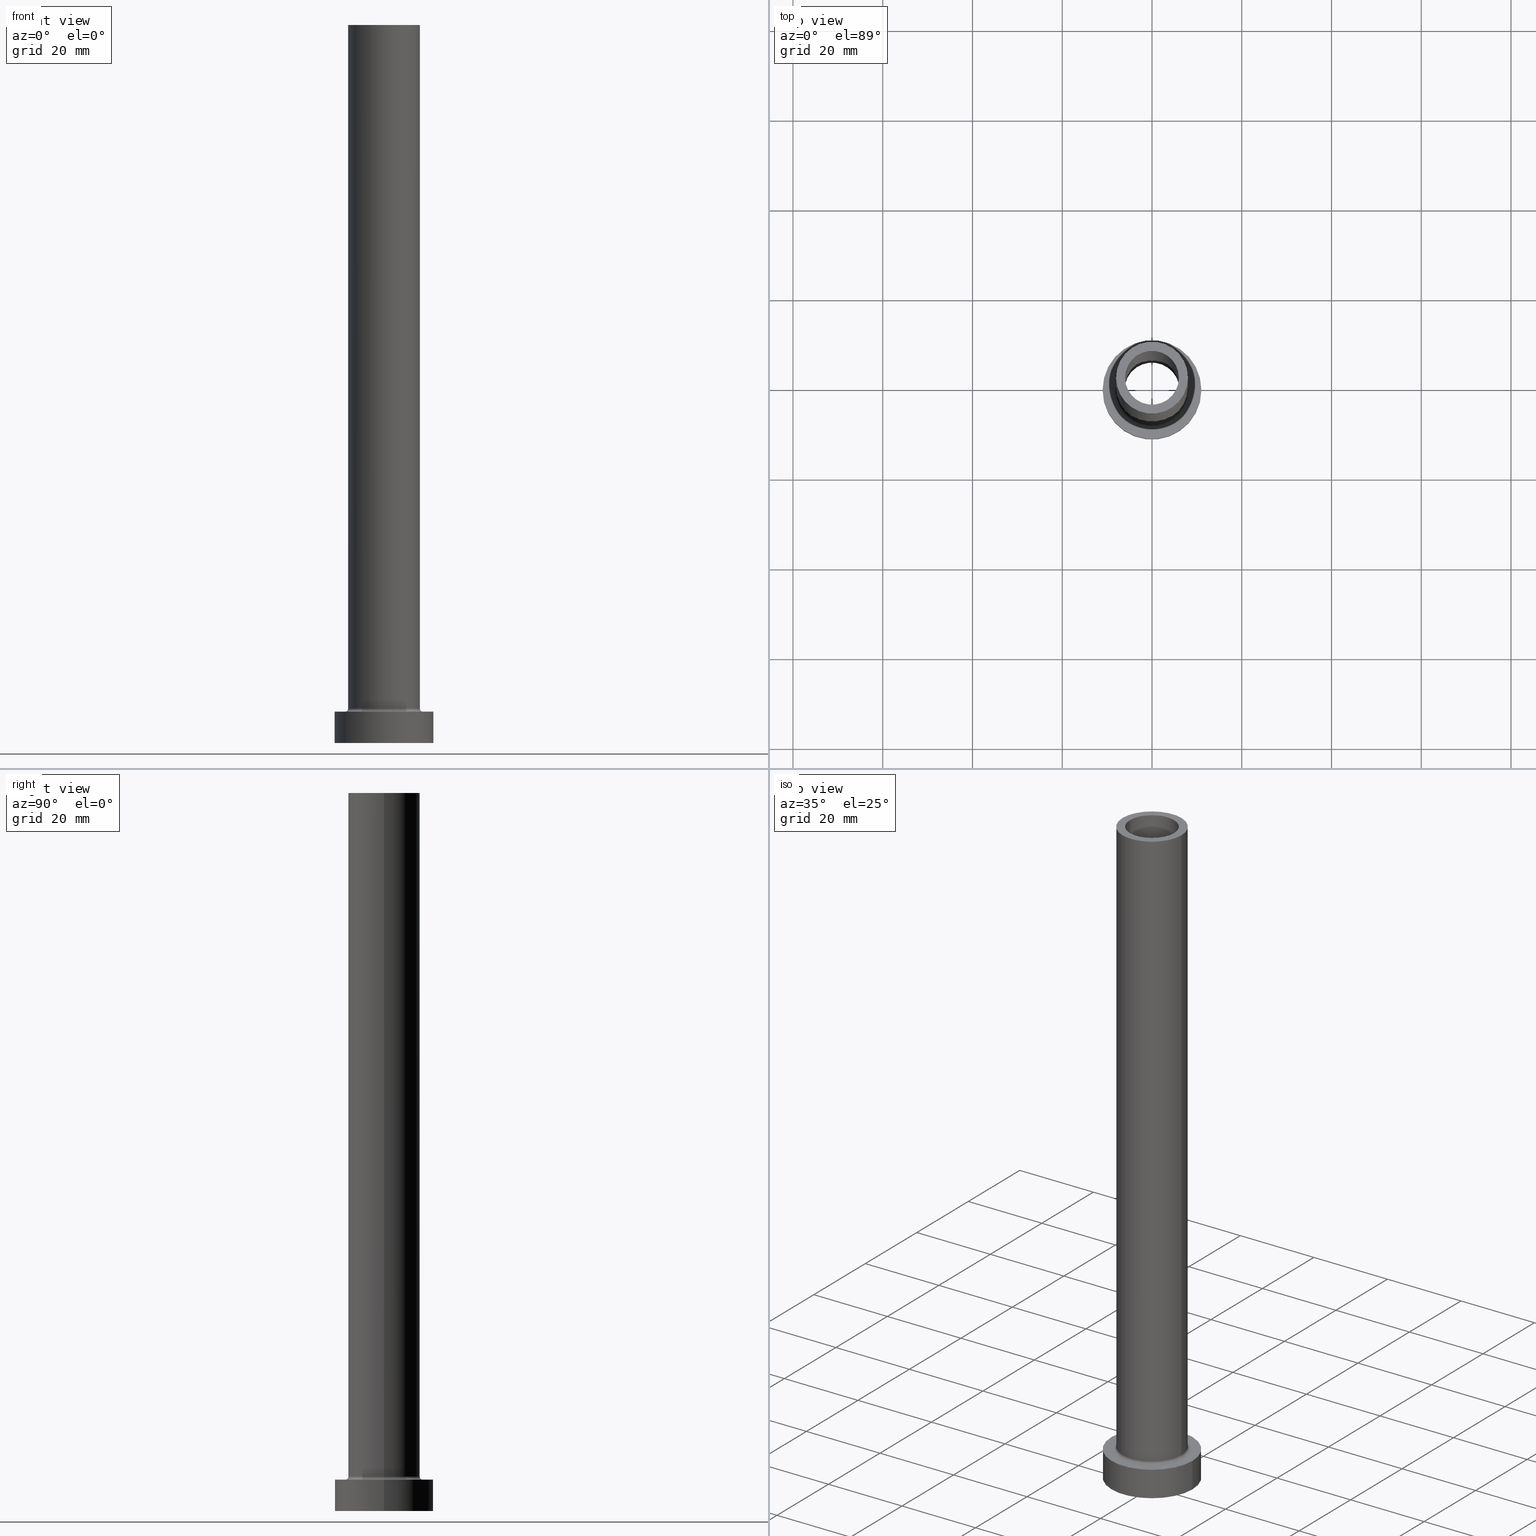
[diagram: canonical four-view strip — front | top / right | iso, engineering-drawing reading convention]
A machine part, canonical four-view strip (front | top / right | iso — engineering-drawing reading convention). The complete STEP part file that produces these views, byte-faithful:
ISO-10303-21;
HEADER;
FILE_DESCRIPTION (( 'STEP AP203' ),
    '1' );
FILE_NAME ('1817.STEP',
    '2023-02-13T07:42:31',
    ( '' ),
    ( '' ),
    'SwSTEP 2.0',
    'SolidWorks 2019',
    '' );
FILE_SCHEMA (( 'CONFIG_CONTROL_DESIGN' ));
ENDSEC;

DATA;
#1 = DIRECTION ( 'NONE',  ( 0.000000000000000000, 0.000000000000000000, 1.000000000000000000 ) ) ;
#2 = VERTEX_POINT ( 'NONE', #188 ) ;
#3 = ORGANIZATION ( 'NEUR�EN�', 'NEUR�EN�', '' ) ;
#4 = EDGE_CURVE ( 'NONE', #206, #430, #296, .T. ) ;
#5 = CARTESIAN_POINT ( 'NONE',  ( 0.000000000000000000, 0.000000000000000000, 7.000000000000000000 ) ) ;
#6 = ORIENTED_EDGE ( 'NONE', *, *, #4, .F. ) ;
#7 = APPLICATION_PROTOCOL_DEFINITION ( 'international standard', 'config_control_design', 1994, #309 ) ;
#8 = ORIENTED_EDGE ( 'NONE', *, *, #350, .T. ) ;
#9 = DIRECTION ( 'NONE',  ( 0.000000000000000000, 0.000000000000000000, 1.000000000000000000 ) ) ;
#10 = CIRCLE ( 'NONE', #372, 6.000000000000000888 ) ;
#11 = CARTESIAN_POINT ( 'NONE',  ( 0.000000000000000000, 0.000000000000000000, 7.000000000000000000 ) ) ;
#12 =( NAMED_UNIT ( * ) SI_UNIT ( $, .STERADIAN. ) SOLID_ANGLE_UNIT ( ) );
#13 = CARTESIAN_POINT ( 'NONE',  ( 11.00000000000000000, 1.347111479062088405E-15, 0.000000000000000000 ) ) ;
#14 = CIRCLE ( 'NONE', #71, 11.00000000000000000 ) ;
#15 = ORIENTED_EDGE ( 'NONE', *, *, #456, .F. ) ;
#16 = PERSON_AND_ORGANIZATION_ROLE ( 'classification_officer' ) ;
#17 = CARTESIAN_POINT ( 'NONE',  ( 0.000000000000000000, 0.000000000000000000, 7.700000000000012612 ) ) ;
#18 = APPROVAL_STATUS ( 'not_yet_approved' ) ;
#19 = DIRECTION ( 'NONE',  ( 0.000000000000000000, 0.000000000000000000, 1.000000000000000000 ) ) ;
#20 = PERSON_AND_ORGANIZATION ( #191, #3 ) ;
#21 = AXIS2_PLACEMENT_3D ( 'NONE', #367, #47, #365 ) ;
#22 = FACE_BOUND ( 'NONE', #317, .T. ) ;
#23 = DIRECTION ( 'NONE',  ( 1.000000000000000000, 0.000000000000000000, 0.000000000000000000 ) ) ;
#24 = APPROVAL ( #18, 'NEUR�EN�' ) ;
#25 = CARTESIAN_POINT ( 'NONE',  ( 6.000000000000000888, 7.347880794884119736E-16, 160.0000000000000000 ) ) ;
#26 = PLANE ( 'NONE',  #273 ) ;
#27 = APPROVAL_PERSON_ORGANIZATION ( #75, #374, #437 ) ;
#28 = ORIENTED_EDGE ( 'NONE', *, *, #458, .T. ) ;
#29 = VERTEX_POINT ( 'NONE', #331 ) ;
#30 = EDGE_CURVE ( 'NONE', #401, #36, #77, .T. ) ;
#31 = FACE_BOUND ( 'NONE', #358, .T. ) ;
#32 = EDGE_LOOP ( 'NONE', ( #67, #424 ) ) ;
#33 = EDGE_LOOP ( 'NONE', ( #284, #73, #176, #156 ) ) ;
#34 = PRODUCT_DEFINITION_SHAPE ( 'NONE', 'NONE',  #76 ) ;
#35 = CARTESIAN_POINT ( 'NONE',  ( 0.000000000000000000, 0.000000000000000000, 132.3948268171890561 ) ) ;
#36 = VERTEX_POINT ( 'NONE', #369 ) ;
#37 = FACE_OUTER_BOUND ( 'NONE', #394, .T. ) ;
#38 = CIRCLE ( 'NONE', #455, 6.150000000000000355 ) ;
#39 = VERTEX_POINT ( 'NONE', #222 ) ;
#40 = AXIS2_PLACEMENT_3D ( 'NONE', #276, #240, #205 ) ;
#41 = CC_DESIGN_APPROVAL ( #127, ( #57 ) ) ;
#42 = DIRECTION ( 'NONE',  ( 0.000000000000000000, 0.000000000000000000, 1.000000000000000000 ) ) ;
#43 = AXIS2_PLACEMENT_3D ( 'NONE', #453, #163, #263 ) ;
#44 = EDGE_CURVE ( 'NONE', #104, #138, #116, .T. ) ;
#45 = AXIS2_PLACEMENT_3D ( 'NONE', #185, #118, #255 ) ;
#46 = CC_DESIGN_PERSON_AND_ORGANIZATION_ASSIGNMENT ( #199, #377, ( #57 ) ) ;
#47 = DIRECTION ( 'NONE',  ( 0.000000000000000000, 0.000000000000000000, 1.000000000000000000 ) ) ;
#48 = DIRECTION ( 'NONE',  ( 1.000000000000000000, 0.000000000000000000, 0.000000000000000000 ) ) ;
#49 = CARTESIAN_POINT ( 'NONE',  ( 0.000000000000000000, 0.000000000000000000, 160.0000000000000000 ) ) ;
#50 = EDGE_CURVE ( 'NONE', #39, #177, #172, .T. ) ;
#51 = CIRCLE ( 'NONE', #440, 6.150000000000000355 ) ;
#52 = DIRECTION ( 'NONE',  ( 1.000000000000000000, 0.000000000000000000, 0.000000000000000000 ) ) ;
#53 = APPROVAL_STATUS ( 'not_yet_approved' ) ;
#54 = CARTESIAN_POINT ( 'NONE',  ( 0.000000000000000000, 0.000000000000000000, 132.3948268171890561 ) ) ;
#55 = CARTESIAN_POINT ( 'NONE',  ( 0.000000000000000000, 0.000000000000000000, 0.000000000000000000 ) ) ;
#56 = DATE_TIME_ROLE ( 'classification_date' ) ;
#57 = PRODUCT_DEFINITION_FORMATION_WITH_SPECIFIED_SOURCE ( 'LIBOVOLN�', '', #324, .NOT_KNOWN. ) ;
#58 = CARTESIAN_POINT ( 'NONE',  ( 8.000000000000000000, 9.797174393178825657E-16, 7.700000000000012612 ) ) ;
#59 = CARTESIAN_POINT ( 'NONE',  ( 6.000000000000000888, 7.347880794884119736E-16, 160.0000000000000000 ) ) ;
#60 = CARTESIAN_POINT ( 'NONE',  ( 0.000000000000000000, 0.000000000000000000, 115.0000000000000000 ) ) ;
#61 = ORIENTED_EDGE ( 'NONE', *, *, #149, .F. ) ;
#62 = CARTESIAN_POINT ( 'NONE',  ( -6.150000000000000355, 0.000000000000000000, 115.0000000000000000 ) ) ;
#63 = TOROIDAL_SURFACE ( 'NONE', #252, 8.699999999999999289, 0.6999999999999999556 ) ;
#64 = EDGE_LOOP ( 'NONE', ( #228, #70, #246, #83 ) ) ;
#65 = LOCAL_TIME ( 8, 42, 31.00000000000000000, #229 ) ;
#66 = DIRECTION ( 'NONE',  ( -1.000000000000000000, 0.000000000000000000, 0.000000000000000000 ) ) ;
#67 = ORIENTED_EDGE ( 'NONE', *, *, #416, .T. ) ;
#68 = ORIENTED_EDGE ( 'NONE', *, *, #277, .F. ) ;
#69 = CARTESIAN_POINT ( 'NONE',  ( -6.150000000000000355, 0.000000000000000000, 132.3948268171890561 ) ) ;
#70 = ORIENTED_EDGE ( 'NONE', *, *, #105, .T. ) ;
#71 = AXIS2_PLACEMENT_3D ( 'NONE', #417, #348, #52 ) ;
#72 = CYLINDRICAL_SURFACE ( 'NONE', #325, 6.000000000000000888 ) ;
#73 = ORIENTED_EDGE ( 'NONE', *, *, #384, .T. ) ;
#74 = AXIS2_PLACEMENT_3D ( 'NONE', #213, #396, #318 ) ;
#75 = PERSON_AND_ORGANIZATION ( #191, #3 ) ;
#76 = PRODUCT_DEFINITION ( 'NEZN�M�', '', #57, #242 ) ;
#77 = CIRCLE ( 'NONE', #352, 8.699999999999999289 ) ;
#78 = DIRECTION ( 'NONE',  ( 0.000000000000000000, 0.000000000000000000, 1.000000000000000000 ) ) ;
#79 = AXIS2_PLACEMENT_3D ( 'NONE', #420, #109, #351 ) ;
#80 = SECURITY_CLASSIFICATION ( '', '', #120 ) ;
#81 = FACE_OUTER_BOUND ( 'NONE', #140, .T. ) ;
#82 = COORDINATED_UNIVERSAL_TIME_OFFSET ( 1, 0, .AHEAD. ) ;
#83 = ORIENTED_EDGE ( 'NONE', *, *, #303, .F. ) ;
#84 = CALENDAR_DATE ( 2023, 13, 2 ) ;
#85 = DIRECTION ( 'NONE',  ( 0.000000000000000000, 0.000000000000000000, -1.000000000000000000 ) ) ;
#86 = LOCAL_TIME ( 8, 42, 31.00000000000000000, #298 ) ;
#87 = PERSON_AND_ORGANIZATION_ROLE ( 'creator' ) ;
#88 = CYLINDRICAL_SURFACE ( 'NONE', #153, 11.00000000000000000 ) ;
#89 = DIRECTION ( 'NONE',  ( 0.000000000000000000, 0.000000000000000000, 1.000000000000000000 ) ) ;
#90 = DATE_AND_TIME ( #84, #307 ) ;
#91 = DIRECTION ( 'NONE',  ( 1.000000000000000000, 0.000000000000000000, 0.000000000000000000 ) ) ;
#92 = CLOSED_SHELL ( 'NONE', ( #299, #323, #397, #404, #175, #122, #220, #250, #281, #147, #196, #132, #260, #223 ) ) ;
#93 = EDGE_CURVE ( 'NONE', #138, #430, #137, .T. ) ;
#94 = PLANE ( 'NONE',  #236 ) ;
#95 = CARTESIAN_POINT ( 'NONE',  ( -6.150000000000000355, 0.000000000000000000, 0.000000000000000000 ) ) ;
#96 = EDGE_CURVE ( 'NONE', #2, #239, #432, .T. ) ;
#97 = CARTESIAN_POINT ( 'NONE',  ( 0.000000000000000000, 0.000000000000000000, 115.0000000000000000 ) ) ;
#98 = ORIENTED_EDGE ( 'NONE', *, *, #349, .T. ) ;
#99 = VERTEX_POINT ( 'NONE', #382 ) ;
#100 = CARTESIAN_POINT ( 'NONE',  ( 11.00000000000000000, 1.347111479062088405E-15, 7.000000000000000000 ) ) ;
#101 = CIRCLE ( 'NONE', #314, 8.000000000000000000 ) ;
#102 = EDGE_LOOP ( 'NONE', ( #354, #278 ) ) ;
#103 = CC_DESIGN_APPROVAL ( #24, ( #80 ) ) ;
#104 = VERTEX_POINT ( 'NONE', #119 ) ;
#105 = EDGE_CURVE ( 'NONE', #251, #261, #268, .T. ) ;
#106 = CARTESIAN_POINT ( 'NONE',  ( 6.150000000000000355, 7.531577814756222064E-16, 132.3948268171890561 ) ) ;
#107 = EDGE_LOOP ( 'NONE', ( #253, #248, #321, #143 ) ) ;
#108 = CC_DESIGN_DATE_AND_TIME_ASSIGNMENT ( #90, #56, ( #80 ) ) ;
#109 = DIRECTION ( 'NONE',  ( 0.000000000000000000, 0.000000000000000000, -1.000000000000000000 ) ) ;
#110 = VERTEX_POINT ( 'NONE', #264 ) ;
#111 = CARTESIAN_POINT ( 'NONE',  ( 0.000000000000000000, 0.000000000000000000, 160.0000000000000000 ) ) ;
#112 = CIRCLE ( 'NONE', #368, 6.150000000000000355 ) ;
#113 = CARTESIAN_POINT ( 'NONE',  ( 0.000000000000000000, 0.000000000000000000, 160.0000000000000000 ) ) ;
#114 = CARTESIAN_POINT ( 'NONE',  ( 8.699999999999999289, 0.000000000000000000, 7.000000000000006217 ) ) ;
#115 = AXIS2_PLACEMENT_3D ( 'NONE', #259, #302, #129 ) ;
#116 = LINE ( 'NONE', #189, #158 ) ;
#117 = LOCAL_TIME ( 8, 42, 31.00000000000000000, #344 ) ;
#118 = DIRECTION ( 'NONE',  ( 0.000000000000000000, 0.000000000000000000, 1.000000000000000000 ) ) ;
#119 = CARTESIAN_POINT ( 'NONE',  ( 8.000000000000000000, 9.797174393178825657E-16, 160.0000000000000000 ) ) ;
#120 = SECURITY_CLASSIFICATION_LEVEL ( 'unclassified' ) ;
#121 = CARTESIAN_POINT ( 'NONE',  ( -11.00000000000000000, 0.000000000000000000, 7.000000000000000000 ) ) ;
#122 = ADVANCED_FACE ( 'NONE', ( #305 ), #266, .T. ) ;
#123 = EDGE_CURVE ( 'NONE', #146, #251, #387, .T. ) ;
#124 = CIRCLE ( 'NONE', #390, 8.000000000000000000 ) ;
#125 = APPROVAL_DATE_TIME ( #414, #127 ) ;
#126 = DIRECTION ( 'NONE',  ( -0.000000000000000000, -0.000000000000000000, -1.000000000000000000 ) ) ;
#127 = APPROVAL ( #53, 'NEUR�EN�' ) ;
#128 = CALENDAR_DATE ( 2023, 13, 2 ) ;
#129 = DIRECTION ( 'NONE',  ( 1.000000000000000000, 0.000000000000000000, 0.000000000000000000 ) ) ;
#130 = PERSON_AND_ORGANIZATION ( #191, #3 ) ;
#131 = CIRCLE ( 'NONE', #297, 6.000000000000000888 ) ;
#132 = ADVANCED_FACE ( 'NONE', ( #410 ), #235, .F. ) ;
#133 = DIRECTION ( 'NONE',  ( 0.000000000000000000, 0.000000000000000000, -1.000000000000000000 ) ) ;
#134 = CARTESIAN_POINT ( 'NONE',  ( 0.000000000000000000, 0.000000000000000000, 115.0000000000000000 ) ) ;
#135 = ORIENTED_EDGE ( 'NONE', *, *, #93, .T. ) ;
#136 = LINE ( 'NONE', #106, #258 ) ;
#137 = CIRCLE ( 'NONE', #403, 8.000000000000000000 ) ;
#138 = VERTEX_POINT ( 'NONE', #58 ) ;
#139 = EDGE_CURVE ( 'NONE', #177, #39, #14, .T. ) ;
#140 = EDGE_LOOP ( 'NONE', ( #389, #28, #362, #461 ) ) ;
#141 = DIRECTION ( 'NONE',  ( -0.000000000000000000, -0.000000000000000000, -1.000000000000000000 ) ) ;
#142 =( GEOMETRIC_REPRESENTATION_CONTEXT ( 3 ) GLOBAL_UNCERTAINTY_ASSIGNED_CONTEXT ( ( #170 ) ) GLOBAL_UNIT_ASSIGNED_CONTEXT ( ( #254, #159, #12 ) ) REPRESENTATION_CONTEXT ( 'NONE', 'WORKASPACE' ) );
#143 = ORIENTED_EDGE ( 'NONE', *, *, #215, .F. ) ;
#144 = CC_DESIGN_PERSON_AND_ORGANIZATION_ASSIGNMENT ( #20, #87, ( #57 ) ) ;
#145 = DIRECTION ( 'NONE',  ( 1.000000000000000000, 0.000000000000000000, 0.000000000000000000 ) ) ;
#146 = VERTEX_POINT ( 'NONE', #342 ) ;
#147 = ADVANCED_FACE ( 'NONE', ( #415, #204 ), #94, .T. ) ;
#148 = MECHANICAL_CONTEXT ( 'NONE', #309, 'mechanical' ) ;
#149 = EDGE_CURVE ( 'NONE', #99, #329, #38, .T. ) ;
#150 = ORIENTED_EDGE ( 'NONE', *, *, #4, .T. ) ;
#151 = DIRECTION ( 'NONE',  ( -1.000000000000000000, 1.224646799147353207E-16, 0.000000000000000000 ) ) ;
#152 = DIRECTION ( 'NONE',  ( -0.000000000000000000, -0.000000000000000000, -1.000000000000000000 ) ) ;
#153 = AXIS2_PLACEMENT_3D ( 'NONE', #408, #198, #376 ) ;
#154 = DIRECTION ( 'NONE',  ( 0.000000000000000000, 0.000000000000000000, 1.000000000000000000 ) ) ;
#155 = PERSON_AND_ORGANIZATION ( #191, #3 ) ;
#156 = ORIENTED_EDGE ( 'NONE', *, *, #338, .F. ) ;
#157 = EDGE_CURVE ( 'NONE', #430, #138, #101, .T. ) ;
#158 = VECTOR ( 'NONE', #334, 1000.000000000000000 ) ;
#159 =( NAMED_UNIT ( * ) PLANE_ANGLE_UNIT ( ) SI_UNIT ( $, .RADIAN. ) );
#160 = ORIENTED_EDGE ( 'NONE', *, *, #267, .F. ) ;
#161 = CALENDAR_DATE ( 2023, 13, 2 ) ;
#162 = DIRECTION ( 'NONE',  ( 1.000000000000000000, 0.000000000000000000, 0.000000000000000000 ) ) ;
#163 = DIRECTION ( 'NONE',  ( 0.000000000000000000, 0.000000000000000000, 1.000000000000000000 ) ) ;
#164 = CC_DESIGN_PERSON_AND_ORGANIZATION_ASSIGNMENT ( #304, #231, ( #76 ) ) ;
#165 = FACE_OUTER_BOUND ( 'NONE', #287, .T. ) ;
#166 = AXIS2_PLACEMENT_3D ( 'NONE', #97, #326, #145 ) ;
#167 = SHAPE_DEFINITION_REPRESENTATION ( #34, #327 ) ;
#168 = CALENDAR_DATE ( 2023, 13, 2 ) ;
#169 = EDGE_CURVE ( 'NONE', #329, #99, #112, .T. ) ;
#170 = UNCERTAINTY_MEASURE_WITH_UNIT (LENGTH_MEASURE( 1.000000000000000082E-05 ), #254, 'distance_accuracy_value', 'NONE');
#171 = FACE_OUTER_BOUND ( 'NONE', #426, .T. ) ;
#172 = CIRCLE ( 'NONE', #343, 11.00000000000000000 ) ;
#173 = CIRCLE ( 'NONE', #434, 8.000000000000000000 ) ;
#174 = DIRECTION ( 'NONE',  ( 0.000000000000000000, 0.000000000000000000, 1.000000000000000000 ) ) ;
#175 = ADVANCED_FACE ( 'NONE', ( #233 ), #88, .T. ) ;
#176 = ORIENTED_EDGE ( 'NONE', *, *, #303, .T. ) ;
#177 = VERTEX_POINT ( 'NONE', #203 ) ;
#178 = DIRECTION ( 'NONE',  ( 1.000000000000000000, 0.000000000000000000, 0.000000000000000000 ) ) ;
#179 = ORIENTED_EDGE ( 'NONE', *, *, #267, .T. ) ;
#180 = DIRECTION ( 'NONE',  ( 1.000000000000000000, 0.000000000000000000, -0.000000000000000000 ) ) ;
#181 = ORIENTED_EDGE ( 'NONE', *, *, #322, .T. ) ;
#182 = DIRECTION ( 'NONE',  ( 1.000000000000000000, 0.000000000000000000, -0.000000000000000000 ) ) ;
#183 = APPROVAL_PERSON_ORGANIZATION ( #130, #127, #444 ) ;
#184 = ORIENTED_EDGE ( 'NONE', *, *, #381, .F. ) ;
#185 = CARTESIAN_POINT ( 'NONE',  ( 0.000000000000000000, 0.000000000000000000, 0.000000000000000000 ) ) ;
#186 = EDGE_LOOP ( 'NONE', ( #339, #452 ) ) ;
#187 = DIRECTION ( 'NONE',  ( -0.000000000000000000, -0.000000000000000000, -1.000000000000000000 ) ) ;
#188 = CARTESIAN_POINT ( 'NONE',  ( 6.150000000000000355, 7.531577814756222064E-16, 115.0000000000000000 ) ) ;
#189 = CARTESIAN_POINT ( 'NONE',  ( 8.000000000000000000, 9.797174393178825657E-16, 160.0000000000000000 ) ) ;
#190 = AXIS2_PLACEMENT_3D ( 'NONE', #407, #78, #400 ) ;
#191 = PERSON ( 'NEUR�EN�', 'NEUR�EN�', 'NEUR�EN�', ('NEUR�EN�'), ('NEUR�EN�'), ('NEUR�EN�') ) ;
#192 = CARTESIAN_POINT ( 'NONE',  ( 0.000000000000000000, 0.000000000000000000, 7.700000000000012612 ) ) ;
#193 = DIRECTION ( 'NONE',  ( 1.000000000000000000, 0.000000000000000000, 0.000000000000000000 ) ) ;
#194 = DATE_TIME_ROLE ( 'creation_date' ) ;
#195 = AXIS2_PLACEMENT_3D ( 'NONE', #5, #174, #182 ) ;
#196 = ADVANCED_FACE ( 'NONE', ( #165 ), #399, .F. ) ;
#197 = APPROVAL_DATE_TIME ( #375, #24 ) ;
#198 = DIRECTION ( 'NONE',  ( -0.000000000000000000, -0.000000000000000000, -1.000000000000000000 ) ) ;
#199 = PERSON_AND_ORGANIZATION ( #191, #3 ) ;
#200 = DIRECTION ( 'NONE',  ( -0.000000000000000000, -0.000000000000000000, -1.000000000000000000 ) ) ;
#201 = CARTESIAN_POINT ( 'NONE',  ( 0.000000000000000000, 0.000000000000000000, 7.700000000000012612 ) ) ;
#202 = VECTOR ( 'NONE', #454, 1000.000000000000000 ) ;
#203 = CARTESIAN_POINT ( 'NONE',  ( 11.00000000000000000, 1.347111479062088405E-15, 7.000000000000000000 ) ) ;
#204 = FACE_OUTER_BOUND ( 'NONE', #32, .T. ) ;
#205 = DIRECTION ( 'NONE',  ( 0.000000000000000000, 0.000000000000000000, -1.000000000000000000 ) ) ;
#206 = VERTEX_POINT ( 'NONE', #345 ) ;
#207 = AXIS2_PLACEMENT_3D ( 'NONE', #355, #460, #180 ) ;
#208 = DIRECTION ( 'NONE',  ( -1.000000000000000000, 0.000000000000000000, 0.000000000000000000 ) ) ;
#209 = ORIENTED_EDGE ( 'NONE', *, *, #312, .T. ) ;
#210 = DIRECTION ( 'NONE',  ( 0.000000000000000000, 0.000000000000000000, 1.000000000000000000 ) ) ;
#211 = EDGE_LOOP ( 'NONE', ( #181, #179, #319, #328 ) ) ;
#212 = ORIENTED_EDGE ( 'NONE', *, *, #381, .T. ) ;
#213 = CARTESIAN_POINT ( 'NONE',  ( 0.000000000000000000, 0.000000000000000000, 160.0000000000000000 ) ) ;
#214 = EDGE_LOOP ( 'NONE', ( #366, #61 ) ) ;
#215 = EDGE_CURVE ( 'NONE', #39, #29, #341, .T. ) ;
#216 = FACE_OUTER_BOUND ( 'NONE', #346, .T. ) ;
#217 = VECTOR ( 'NONE', #378, 1000.000000000000000 ) ;
#218 = ORIENTED_EDGE ( 'NONE', *, *, #338, .T. ) ;
#219 = ORIENTED_EDGE ( 'NONE', *, *, #442, .T. ) ;
#220 = ADVANCED_FACE ( 'NONE', ( #22, #308 ), #388, .T. ) ;
#221 = DIRECTION ( 'NONE',  ( 1.000000000000000000, 0.000000000000000000, 0.000000000000000000 ) ) ;
#222 = CARTESIAN_POINT ( 'NONE',  ( -11.00000000000000000, 0.000000000000000000, 7.000000000000000000 ) ) ;
#223 = ADVANCED_FACE ( 'NONE', ( #288 ), #282, .F. ) ;
#224 = APPLICATION_PROTOCOL_DEFINITION ( 'international standard', 'config_control_design', 1994, #340 ) ;
#225 = AXIS2_PLACEMENT_3D ( 'NONE', #111, #187, #335 ) ;
#226 = DIRECTION ( 'NONE',  ( 1.000000000000000000, 0.000000000000000000, 0.000000000000000000 ) ) ;
#227 = CARTESIAN_POINT ( 'NONE',  ( 0.000000000000000000, 0.000000000000000000, 7.000000000000000000 ) ) ;
#228 = ORIENTED_EDGE ( 'NONE', *, *, #123, .T. ) ;
#229 = COORDINATED_UNIVERSAL_TIME_OFFSET ( 1, 0, .AHEAD. ) ;
#230 = VECTOR ( 'NONE', #85, 1000.000000000000000 ) ;
#231 = PERSON_AND_ORGANIZATION_ROLE ( 'creator' ) ;
#232 = CARTESIAN_POINT ( 'NONE',  ( 0.000000000000000000, 0.000000000000000000, 160.0000000000000000 ) ) ;
#233 = FACE_OUTER_BOUND ( 'NONE', #107, .T. ) ;
#234 = PERSON_AND_ORGANIZATION ( #191, #3 ) ;
#235 = CYLINDRICAL_SURFACE ( 'NONE', #270, 6.150000000000000355 ) ;
#236 = AXIS2_PLACEMENT_3D ( 'NONE', #232, #300, #412 ) ;
#237 = VECTOR ( 'NONE', #133, 1000.000000000000000 ) ;
#238 = CC_DESIGN_PERSON_AND_ORGANIZATION_ASSIGNMENT ( #347, #16, ( #80 ) ) ;
#239 = VERTEX_POINT ( 'NONE', #62 ) ;
#240 = DIRECTION ( 'NONE',  ( 0.000000000000000000, -1.000000000000000000, 0.000000000000000000 ) ) ;
#241 = ORIENTED_EDGE ( 'NONE', *, *, #458, .F. ) ;
#242 = DESIGN_CONTEXT ( 'detailed design', #340, 'design' ) ;
#243 = DIRECTION ( 'NONE',  ( 0.000000000000000000, 0.000000000000000000, -1.000000000000000000 ) ) ;
#244 = ORIENTED_EDGE ( 'NONE', *, *, #139, .T. ) ;
#245 = DIRECTION ( 'NONE',  ( 0.000000000000000000, 0.000000000000000000, -1.000000000000000000 ) ) ;
#246 = ORIENTED_EDGE ( 'NONE', *, *, #312, .F. ) ;
#247 = LINE ( 'NONE', #69, #237 ) ;
#248 = ORIENTED_EDGE ( 'NONE', *, *, #277, .T. ) ;
#249 = DIRECTION ( 'NONE',  ( 1.000000000000000000, 0.000000000000000000, -0.000000000000000000 ) ) ;
#250 = ADVANCED_FACE ( 'NONE', ( #431, #393 ), #391, .F. ) ;
#251 = VERTEX_POINT ( 'NONE', #25 ) ;
#252 = AXIS2_PLACEMENT_3D ( 'NONE', #433, #42, #221 ) ;
#253 = ORIENTED_EDGE ( 'NONE', *, *, #139, .F. ) ;
#254 =( LENGTH_UNIT ( ) NAMED_UNIT ( * ) SI_UNIT ( .MILLI., .METRE. ) );
#255 = DIRECTION ( 'NONE',  ( 1.000000000000000000, 0.000000000000000000, 0.000000000000000000 ) ) ;
#256 = ORIENTED_EDGE ( 'NONE', *, *, #44, .F. ) ;
#257 = DIRECTION ( 'NONE',  ( 1.000000000000000000, 0.000000000000000000, 0.000000000000000000 ) ) ;
#258 = VECTOR ( 'NONE', #385, 1000.000000000000000 ) ;
#259 = CARTESIAN_POINT ( 'NONE',  ( 0.000000000000000000, 0.000000000000000000, 115.0000000000000000 ) ) ;
#260 = ADVANCED_FACE ( 'NONE', ( #31, #37 ), #26, .F. ) ;
#261 = VERTEX_POINT ( 'NONE', #316 ) ;
#262 = DATE_AND_TIME ( #161, #117 ) ;
#263 = DIRECTION ( 'NONE',  ( 1.000000000000000000, 0.000000000000000000, 0.000000000000000000 ) ) ;
#264 = CARTESIAN_POINT ( 'NONE',  ( -6.000000000000000888, 0.000000000000000000, 115.0000000000000000 ) ) ;
#265 = CIRCLE ( 'NONE', #428, 8.699999999999999289 ) ;
#266 = CYLINDRICAL_SURFACE ( 'NONE', #438, 11.00000000000000000 ) ;
#267 = EDGE_CURVE ( 'NONE', #2, #99, #136, .T. ) ;
#268 = LINE ( 'NONE', #59, #230 ) ;
#269 = CC_DESIGN_DATE_AND_TIME_ASSIGNMENT ( #450, #194, ( #76 ) ) ;
#270 = AXIS2_PLACEMENT_3D ( 'NONE', #54, #272, #449 ) ;
#271 = APPROVAL_ROLE ( '' ) ;
#272 = DIRECTION ( 'NONE',  ( 0.000000000000000000, 0.000000000000000000, -1.000000000000000000 ) ) ;
#273 = AXIS2_PLACEMENT_3D ( 'NONE', #353, #1, #249 ) ;
#274 = CC_DESIGN_SECURITY_CLASSIFICATION ( #80, ( #57 ) ) ;
#275 = CC_DESIGN_PERSON_AND_ORGANIZATION_ASSIGNMENT ( #155, #402, ( #324 ) ) ;
#276 = CARTESIAN_POINT ( 'NONE',  ( 8.699999999999999289, 0.000000000000000000, 7.700000000000012612 ) ) ;
#277 = EDGE_CURVE ( 'NONE', #177, #392, #359, .T. ) ;
#278 = ORIENTED_EDGE ( 'NONE', *, *, #446, .F. ) ;
#279 = FACE_OUTER_BOUND ( 'NONE', #211, .T. ) ;
#280 = ORIENTED_EDGE ( 'NONE', *, *, #215, .T. ) ;
#281 = ADVANCED_FACE ( 'NONE', ( #171 ), #457, .T. ) ;
#282 = CYLINDRICAL_SURFACE ( 'NONE', #79, 6.000000000000000888 ) ;
#283 = ORIENTED_EDGE ( 'NONE', *, *, #96, .F. ) ;
#284 = ORIENTED_EDGE ( 'NONE', *, *, #105, .F. ) ;
#285 = CIRCLE ( 'NONE', #448, 0.6999999999999992895 ) ;
#286 = CARTESIAN_POINT ( 'NONE',  ( 0.000000000000000000, 0.000000000000000000, 160.0000000000000000 ) ) ;
#287 = EDGE_LOOP ( 'NONE', ( #241, #356, #8, #184 ) ) ;
#288 = FACE_OUTER_BOUND ( 'NONE', #33, .T. ) ;
#289 = ORIENTED_EDGE ( 'NONE', *, *, #30, .T. ) ;
#290 = EDGE_LOOP ( 'NONE', ( #459, #244 ) ) ;
#291 = DIRECTION ( 'NONE',  ( -0.000000000000000000, -0.000000000000000000, -1.000000000000000000 ) ) ;
#292 = CC_DESIGN_APPROVAL ( #374, ( #76 ) ) ;
#293 = DIRECTION ( 'NONE',  ( -0.000000000000000000, -0.000000000000000000, -1.000000000000000000 ) ) ;
#294 = CARTESIAN_POINT ( 'NONE',  ( 0.000000000000000000, 0.000000000000000000, 160.0000000000000000 ) ) ;
#295 = APPROVAL_STATUS ( 'not_yet_approved' ) ;
#296 = LINE ( 'NONE', #436, #395 ) ;
#297 = AXIS2_PLACEMENT_3D ( 'NONE', #113, #361, #257 ) ;
#298 = COORDINATED_UNIVERSAL_TIME_OFFSET ( 1, 0, .AHEAD. ) ;
#299 = ADVANCED_FACE ( 'NONE', ( #425 ), #72, .F. ) ;
#300 = DIRECTION ( 'NONE',  ( 0.000000000000000000, 0.000000000000000000, 1.000000000000000000 ) ) ;
#301 = CALENDAR_DATE ( 2023, 13, 2 ) ;
#302 = DIRECTION ( 'NONE',  ( 0.000000000000000000, 0.000000000000000000, 1.000000000000000000 ) ) ;
#303 = EDGE_CURVE ( 'NONE', #146, #110, #320, .T. ) ;
#304 = PERSON_AND_ORGANIZATION ( #191, #3 ) ;
#305 = FACE_OUTER_BOUND ( 'NONE', #398, .T. ) ;
#306 = VECTOR ( 'NONE', #141, 1000.000000000000000 ) ;
#307 = LOCAL_TIME ( 8, 42, 31.00000000000000000, #82 ) ;
#308 = FACE_OUTER_BOUND ( 'NONE', #290, .T. ) ;
#309 = APPLICATION_CONTEXT ( 'configuration controlled 3d designs of mechanical parts and assemblies' ) ;
#310 = COORDINATED_UNIVERSAL_TIME_OFFSET ( 1, 0, .AHEAD. ) ;
#311 = ORIENTED_EDGE ( 'NONE', *, *, #96, .T. ) ;
#312 = EDGE_CURVE ( 'NONE', #110, #261, #333, .T. ) ;
#313 = DIRECTION ( 'NONE',  ( 1.000000000000000000, 0.000000000000000000, 0.000000000000000000 ) ) ;
#314 = AXIS2_PLACEMENT_3D ( 'NONE', #17, #89, #91 ) ;
#315 = LOCAL_TIME ( 8, 42, 31.00000000000000000, #310 ) ;
#316 = CARTESIAN_POINT ( 'NONE',  ( 6.000000000000000888, 7.347880794884119736E-16, 115.0000000000000000 ) ) ;
#317 = EDGE_LOOP ( 'NONE', ( #289, #212 ) ) ;
#318 = DIRECTION ( 'NONE',  ( -1.000000000000000000, 0.000000000000000000, 0.000000000000000000 ) ) ;
#319 = ORIENTED_EDGE ( 'NONE', *, *, #149, .T. ) ;
#320 = LINE ( 'NONE', #422, #202 ) ;
#321 = ORIENTED_EDGE ( 'NONE', *, *, #446, .T. ) ;
#322 = EDGE_CURVE ( 'NONE', #239, #2, #51, .T. ) ;
#323 = ADVANCED_FACE ( 'NONE', ( #279 ), #357, .F. ) ;
#324 = PRODUCT ( '1817', '1817', '', ( #148 ) ) ;
#325 = AXIS2_PLACEMENT_3D ( 'NONE', #286, #245, #66 ) ;
#326 = DIRECTION ( 'NONE',  ( 0.000000000000000000, 0.000000000000000000, 1.000000000000000000 ) ) ;
#327 = ADVANCED_BREP_SHAPE_REPRESENTATION ( '1817', ( #413, #45 ), #142 ) ;
#328 = ORIENTED_EDGE ( 'NONE', *, *, #349, .F. ) ;
#329 = VERTEX_POINT ( 'NONE', #95 ) ;
#330 = DIRECTION ( 'NONE',  ( 0.000000000000000000, 0.000000000000000000, 1.000000000000000000 ) ) ;
#331 = CARTESIAN_POINT ( 'NONE',  ( -11.00000000000000000, 0.000000000000000000, 0.000000000000000000 ) ) ;
#332 = CYLINDRICAL_SURFACE ( 'NONE', #225, 8.000000000000000000 ) ;
#333 = CIRCLE ( 'NONE', #166, 6.000000000000000888 ) ;
#334 = DIRECTION ( 'NONE',  ( -0.000000000000000000, -0.000000000000000000, -1.000000000000000000 ) ) ;
#335 = DIRECTION ( 'NONE',  ( -1.000000000000000000, 0.000000000000000000, 0.000000000000000000 ) ) ;
#336 = DIRECTION ( 'NONE',  ( 0.000000000000000000, 0.000000000000000000, 1.000000000000000000 ) ) ;
#337 = DIRECTION ( 'NONE',  ( 1.000000000000000000, 0.000000000000000000, 0.000000000000000000 ) ) ;
#338 = EDGE_CURVE ( 'NONE', #261, #110, #10, .T. ) ;
#339 = ORIENTED_EDGE ( 'NONE', *, *, #123, .F. ) ;
#340 = APPLICATION_CONTEXT ( 'configuration controlled 3d designs of mechanical parts and assemblies' ) ;
#341 = LINE ( 'NONE', #121, #217 ) ;
#342 = CARTESIAN_POINT ( 'NONE',  ( -6.000000000000000888, 0.000000000000000000, 160.0000000000000000 ) ) ;
#343 = AXIS2_PLACEMENT_3D ( 'NONE', #11, #154, #48 ) ;
#344 = COORDINATED_UNIVERSAL_TIME_OFFSET ( 1, 0, .AHEAD. ) ;
#345 = CARTESIAN_POINT ( 'NONE',  ( -8.000000000000000000, 0.000000000000000000, 160.0000000000000000 ) ) ;
#346 = EDGE_LOOP ( 'NONE', ( #15, #419, #135, #6 ) ) ;
#347 = PERSON_AND_ORGANIZATION ( #191, #3 ) ;
#348 = DIRECTION ( 'NONE',  ( 0.000000000000000000, 0.000000000000000000, 1.000000000000000000 ) ) ;
#349 = EDGE_CURVE ( 'NONE', #239, #329, #247, .T. ) ;
#350 = EDGE_CURVE ( 'NONE', #138, #401, #427, .T. ) ;
#351 = DIRECTION ( 'NONE',  ( -1.000000000000000000, 0.000000000000000000, 0.000000000000000000 ) ) ;
#352 = AXIS2_PLACEMENT_3D ( 'NONE', #371, #293, #226 ) ;
#353 = CARTESIAN_POINT ( 'NONE',  ( 0.000000000000000000, 0.000000000000000000, 115.0000000000000000 ) ) ;
#354 = ORIENTED_EDGE ( 'NONE', *, *, #442, .F. ) ;
#355 = CARTESIAN_POINT ( 'NONE',  ( 0.000000000000000000, 0.000000000000000000, 0.000000000000000000 ) ) ;
#356 = ORIENTED_EDGE ( 'NONE', *, *, #93, .F. ) ;
#357 = CYLINDRICAL_SURFACE ( 'NONE', #405, 6.150000000000000355 ) ;
#358 = EDGE_LOOP ( 'NONE', ( #209, #218 ) ) ;
#359 = LINE ( 'NONE', #100, #306 ) ;
#360 = ORIENTED_EDGE ( 'NONE', *, *, #169, .T. ) ;
#361 = DIRECTION ( 'NONE',  ( 0.000000000000000000, 0.000000000000000000, 1.000000000000000000 ) ) ;
#362 = ORIENTED_EDGE ( 'NONE', *, *, #30, .F. ) ;
#363 = CARTESIAN_POINT ( 'NONE',  ( -8.000000000000000000, 0.000000000000000000, 7.700000000000012612 ) ) ;
#364 = EDGE_LOOP ( 'NONE', ( #160, #311, #98, #360 ) ) ;
#365 = DIRECTION ( 'NONE',  ( 1.000000000000000000, 0.000000000000000000, 0.000000000000000000 ) ) ;
#366 = ORIENTED_EDGE ( 'NONE', *, *, #169, .F. ) ;
#367 = CARTESIAN_POINT ( 'NONE',  ( 0.000000000000000000, 0.000000000000000000, 0.000000000000000000 ) ) ;
#368 = AXIS2_PLACEMENT_3D ( 'NONE', #379, #200, #162 ) ;
#369 = CARTESIAN_POINT ( 'NONE',  ( -8.699999999999999289, 1.065442715258197248E-15, 7.000000000000006217 ) ) ;
#370 = DIRECTION ( 'NONE',  ( 1.000000000000000000, 0.000000000000000000, 0.000000000000000000 ) ) ;
#371 = CARTESIAN_POINT ( 'NONE',  ( 0.000000000000000000, 0.000000000000000000, 7.000000000000000000 ) ) ;
#372 = AXIS2_PLACEMENT_3D ( 'NONE', #60, #429, #313 ) ;
#373 = DIRECTION ( 'NONE',  ( -0.000000000000000000, -0.000000000000000000, -1.000000000000000000 ) ) ;
#374 = APPROVAL ( #295, 'NEUR�EN�' ) ;
#375 = DATE_AND_TIME ( #301, #315 ) ;
#376 = DIRECTION ( 'NONE',  ( -1.000000000000000000, 0.000000000000000000, 0.000000000000000000 ) ) ;
#377 = PERSON_AND_ORGANIZATION_ROLE ( 'design_supplier' ) ;
#378 = DIRECTION ( 'NONE',  ( -0.000000000000000000, -0.000000000000000000, -1.000000000000000000 ) ) ;
#379 = CARTESIAN_POINT ( 'NONE',  ( 0.000000000000000000, 0.000000000000000000, 0.000000000000000000 ) ) ;
#380 = CIRCLE ( 'NONE', #190, 11.00000000000000000 ) ;
#381 = EDGE_CURVE ( 'NONE', #36, #401, #265, .T. ) ;
#382 = CARTESIAN_POINT ( 'NONE',  ( 6.150000000000000355, 7.531577814756222064E-16, 0.000000000000000000 ) ) ;
#383 = ORIENTED_EDGE ( 'NONE', *, *, #50, .F. ) ;
#384 = EDGE_CURVE ( 'NONE', #251, #146, #131, .T. ) ;
#385 = DIRECTION ( 'NONE',  ( 0.000000000000000000, 0.000000000000000000, -1.000000000000000000 ) ) ;
#386 = ORIENTED_EDGE ( 'NONE', *, *, #157, .T. ) ;
#387 = CIRCLE ( 'NONE', #43, 6.000000000000000888 ) ;
#388 = PLANE ( 'NONE',  #195 ) ;
#389 = ORIENTED_EDGE ( 'NONE', *, *, #157, .F. ) ;
#390 = AXIS2_PLACEMENT_3D ( 'NONE', #49, #9, #337 ) ;
#391 = PLANE ( 'NONE',  #207 ) ;
#392 = VERTEX_POINT ( 'NONE', #13 ) ;
#393 = FACE_OUTER_BOUND ( 'NONE', #102, .T. ) ;
#394 = EDGE_LOOP ( 'NONE', ( #423, #283 ) ) ;
#395 = VECTOR ( 'NONE', #152, 1000.000000000000000 ) ;
#396 = DIRECTION ( 'NONE',  ( -0.000000000000000000, -0.000000000000000000, -1.000000000000000000 ) ) ;
#397 = ADVANCED_FACE ( 'NONE', ( #81 ), #63, .F. ) ;
#398 = EDGE_LOOP ( 'NONE', ( #68, #383, #280, #219 ) ) ;
#399 = TOROIDAL_SURFACE ( 'NONE', #409, 8.699999999999999289, 0.6999999999999999556 ) ;
#400 = DIRECTION ( 'NONE',  ( 1.000000000000000000, 0.000000000000000000, 0.000000000000000000 ) ) ;
#401 = VERTEX_POINT ( 'NONE', #114 ) ;
#402 = PERSON_AND_ORGANIZATION_ROLE ( 'design_owner' ) ;
#403 = AXIS2_PLACEMENT_3D ( 'NONE', #192, #336, #439 ) ;
#404 = ADVANCED_FACE ( 'NONE', ( #216 ), #332, .T. ) ;
#405 = AXIS2_PLACEMENT_3D ( 'NONE', #35, #243, #208 ) ;
#406 = PRODUCT_RELATED_PRODUCT_CATEGORY ( 'detail', '', ( #324 ) ) ;
#407 = CARTESIAN_POINT ( 'NONE',  ( 0.000000000000000000, 0.000000000000000000, 0.000000000000000000 ) ) ;
#408 = CARTESIAN_POINT ( 'NONE',  ( 0.000000000000000000, 0.000000000000000000, 7.000000000000000000 ) ) ;
#409 = AXIS2_PLACEMENT_3D ( 'NONE', #201, #19, #445 ) ;
#410 = FACE_OUTER_BOUND ( 'NONE', #364, .T. ) ;
#411 = APPROVAL_PERSON_ORGANIZATION ( #234, #24, #271 ) ;
#412 = DIRECTION ( 'NONE',  ( 1.000000000000000000, 0.000000000000000000, -0.000000000000000000 ) ) ;
#413 = MANIFOLD_SOLID_BREP ( 'Odebrat vysunut�m4', #92 ) ;
#414 = DATE_AND_TIME ( #128, #65 ) ;
#415 = FACE_BOUND ( 'NONE', #186, .T. ) ;
#416 = EDGE_CURVE ( 'NONE', #206, #104, #173, .T. ) ;
#417 = CARTESIAN_POINT ( 'NONE',  ( 0.000000000000000000, 0.000000000000000000, 7.000000000000000000 ) ) ;
#418 = CIRCLE ( 'NONE', #21, 11.00000000000000000 ) ;
#419 = ORIENTED_EDGE ( 'NONE', *, *, #44, .T. ) ;
#420 = CARTESIAN_POINT ( 'NONE',  ( 0.000000000000000000, 0.000000000000000000, 160.0000000000000000 ) ) ;
#421 = ORIENTED_EDGE ( 'NONE', *, *, #416, .F. ) ;
#422 = CARTESIAN_POINT ( 'NONE',  ( -6.000000000000000888, 0.000000000000000000, 160.0000000000000000 ) ) ;
#423 = ORIENTED_EDGE ( 'NONE', *, *, #322, .F. ) ;
#424 = ORIENTED_EDGE ( 'NONE', *, *, #456, .T. ) ;
#425 = FACE_OUTER_BOUND ( 'NONE', #64, .T. ) ;
#426 = EDGE_LOOP ( 'NONE', ( #256, #421, #150, #386 ) ) ;
#427 = CIRCLE ( 'NONE', #40, 0.7000000000000000666 ) ;
#428 = AXIS2_PLACEMENT_3D ( 'NONE', #227, #291, #193 ) ;
#429 = DIRECTION ( 'NONE',  ( 0.000000000000000000, 0.000000000000000000, 1.000000000000000000 ) ) ;
#430 = VERTEX_POINT ( 'NONE', #363 ) ;
#431 = FACE_BOUND ( 'NONE', #214, .T. ) ;
#432 = CIRCLE ( 'NONE', #115, 6.150000000000000355 ) ;
#433 = CARTESIAN_POINT ( 'NONE',  ( 0.000000000000000000, 0.000000000000000000, 7.700000000000012612 ) ) ;
#434 = AXIS2_PLACEMENT_3D ( 'NONE', #294, #330, #370 ) ;
#435 = DIRECTION ( 'NONE',  ( 1.224646799147353207E-16, 1.000000000000000000, -0.000000000000000000 ) ) ;
#436 = CARTESIAN_POINT ( 'NONE',  ( -8.000000000000000000, 0.000000000000000000, 160.0000000000000000 ) ) ;
#437 = APPROVAL_ROLE ( '' ) ;
#438 = AXIS2_PLACEMENT_3D ( 'NONE', #443, #373, #451 ) ;
#439 = DIRECTION ( 'NONE',  ( 1.000000000000000000, 0.000000000000000000, 0.000000000000000000 ) ) ;
#440 = AXIS2_PLACEMENT_3D ( 'NONE', #134, #210, #178 ) ;
#441 = CARTESIAN_POINT ( 'NONE',  ( -8.699999999999999289, 1.065442715258197248E-15, 7.700000000000012612 ) ) ;
#442 = EDGE_CURVE ( 'NONE', #29, #392, #418, .T. ) ;
#443 = CARTESIAN_POINT ( 'NONE',  ( 0.000000000000000000, 0.000000000000000000, 7.000000000000000000 ) ) ;
#444 = APPROVAL_ROLE ( '' ) ;
#445 = DIRECTION ( 'NONE',  ( 1.000000000000000000, 0.000000000000000000, 0.000000000000000000 ) ) ;
#446 = EDGE_CURVE ( 'NONE', #392, #29, #380, .T. ) ;
#447 = APPROVAL_DATE_TIME ( #262, #374 ) ;
#448 = AXIS2_PLACEMENT_3D ( 'NONE', #441, #435, #151 ) ;
#449 = DIRECTION ( 'NONE',  ( -1.000000000000000000, 0.000000000000000000, 0.000000000000000000 ) ) ;
#450 = DATE_AND_TIME ( #168, #86 ) ;
#451 = DIRECTION ( 'NONE',  ( -1.000000000000000000, 0.000000000000000000, 0.000000000000000000 ) ) ;
#452 = ORIENTED_EDGE ( 'NONE', *, *, #384, .F. ) ;
#453 = CARTESIAN_POINT ( 'NONE',  ( 0.000000000000000000, 0.000000000000000000, 160.0000000000000000 ) ) ;
#454 = DIRECTION ( 'NONE',  ( 0.000000000000000000, 0.000000000000000000, -1.000000000000000000 ) ) ;
#455 = AXIS2_PLACEMENT_3D ( 'NONE', #55, #126, #23 ) ;
#456 = EDGE_CURVE ( 'NONE', #104, #206, #124, .T. ) ;
#457 = CYLINDRICAL_SURFACE ( 'NONE', #74, 8.000000000000000000 ) ;
#458 = EDGE_CURVE ( 'NONE', #430, #36, #285, .T. ) ;
#459 = ORIENTED_EDGE ( 'NONE', *, *, #50, .T. ) ;
#460 = DIRECTION ( 'NONE',  ( 0.000000000000000000, 0.000000000000000000, 1.000000000000000000 ) ) ;
#461 = ORIENTED_EDGE ( 'NONE', *, *, #350, .F. ) ;
ENDSEC;
END-ISO-10303-21;
